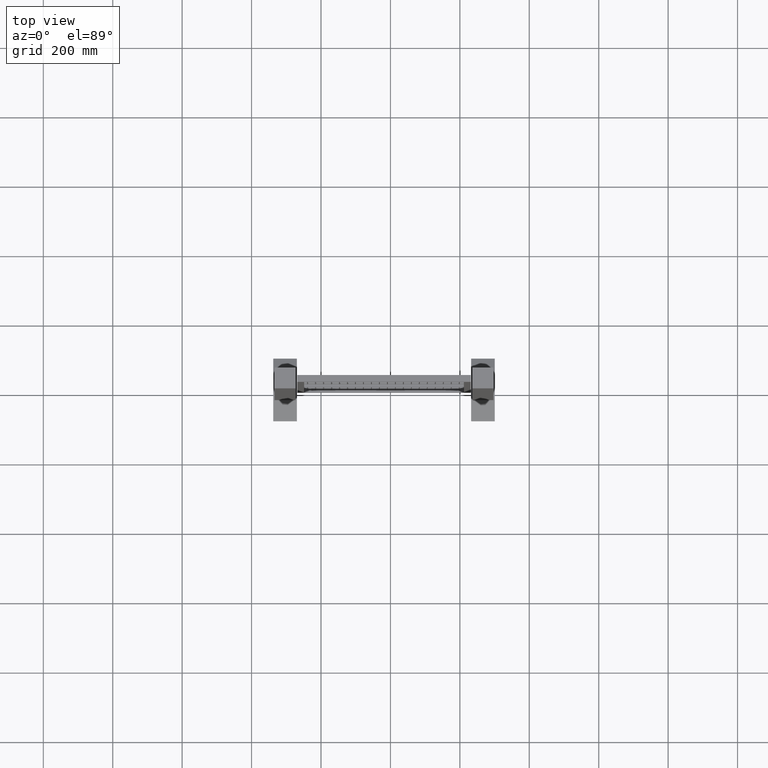
[diagram: clean part render]
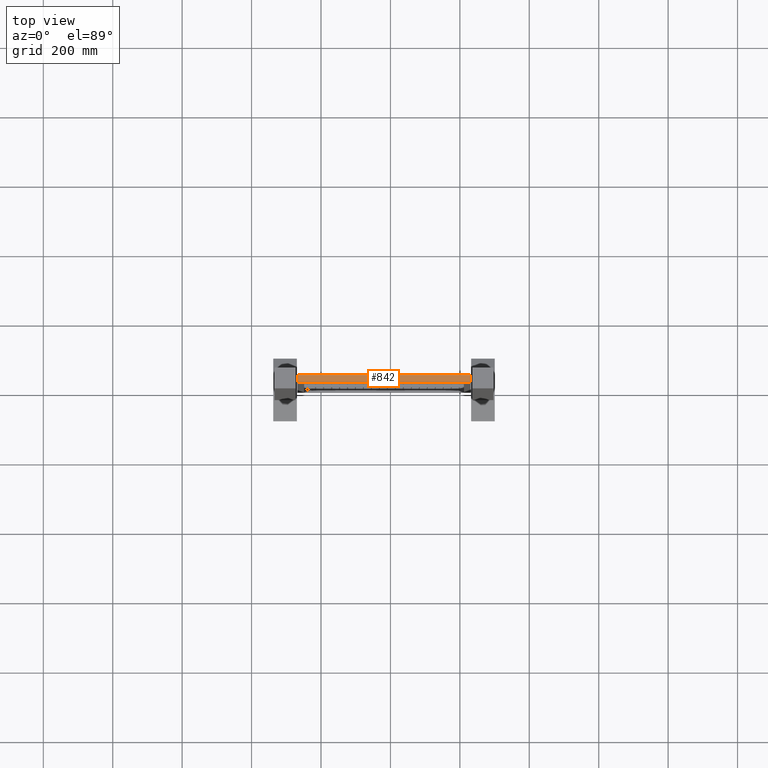
[diagram: same view with one face highlighted and labeled with its STEP entity id]
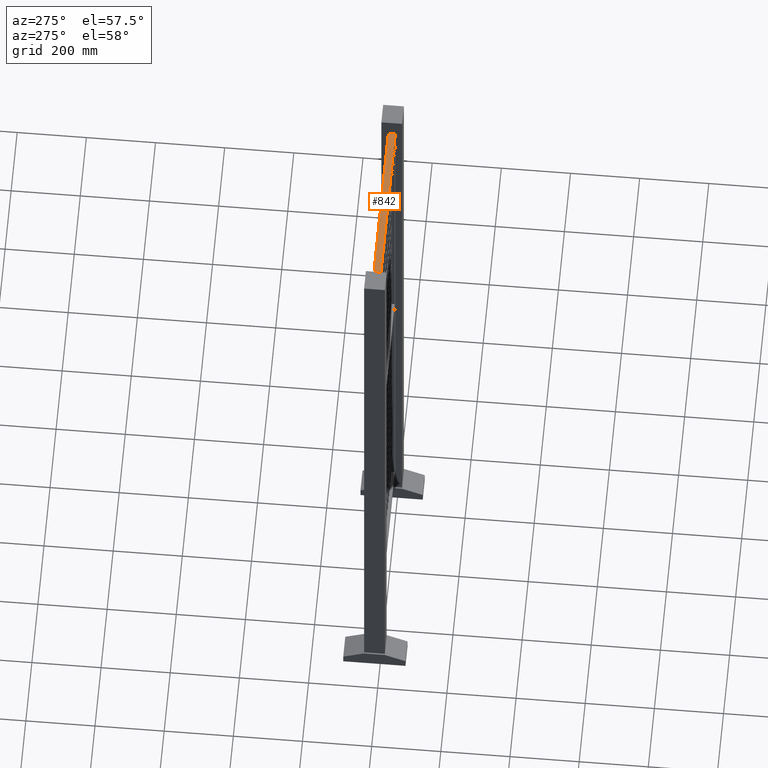
[diagram: same view with one face highlighted and labeled with its STEP entity id]
A machine part, top view. The second image highlights one B-rep face of the part: STEP entity #842.
A second angle (auxiliary view) of the same face is appended — the face is thin or edge-on in the first view.
In plain terms, the highlighted planar face has unit normal (0, 0, -1).
Its self-contained STEP definition (entity closure, byte-faithful):
#79=LINE('',#3009,#173);
#82=LINE('',#3015,#176);
#83=LINE('',#3017,#177);
#84=LINE('',#3019,#178);
#173=VECTOR('',#2435,1.);
#176=VECTOR('',#2440,1.);
#177=VECTOR('',#2441,1.);
#178=VECTOR('',#2442,1.);
#618=PLANE('',#2132);
#726=FACE_OUTER_BOUND('',#1148,.T.);
#842=ADVANCED_FACE('',(#726),#618,.F.);
#1148=EDGE_LOOP('',(#1375,#1376,#1377,#1378));
#1375=ORIENTED_EDGE('',*,*,#1865,.T.);
#1376=ORIENTED_EDGE('',*,*,#1866,.F.);
#1377=ORIENTED_EDGE('',*,*,#1867,.F.);
#1378=ORIENTED_EDGE('',*,*,#1862,.T.);
#1712=VERTEX_POINT('',#3008);
#1713=VERTEX_POINT('',#3010);
#1715=VERTEX_POINT('',#3016);
#1716=VERTEX_POINT('',#3018);
#1862=EDGE_CURVE('',#1713,#1712,#79,.T.);
#1865=EDGE_CURVE('',#1712,#1715,#82,.T.);
#1866=EDGE_CURVE('',#1716,#1715,#83,.T.);
#1867=EDGE_CURVE('',#1713,#1716,#84,.T.);
#2132=AXIS2_PLACEMENT_3D('',#3020,#2443,#2444);
#2435=DIRECTION('',(0.,1.,0.));
#2440=DIRECTION('',(-1.,0.,0.));
#2441=DIRECTION('',(0.,1.,0.));
#2442=DIRECTION('',(-1.,0.,0.));
#2443=DIRECTION('',(0.,0.,-1.));
#2444=DIRECTION('',(-1.,0.,0.));
#3008=CARTESIAN_POINT('',(250.,10.,900.));
#3009=CARTESIAN_POINT('',(250.,-10.,900.));
#3010=CARTESIAN_POINT('',(250.,-10.,900.));
#3015=CARTESIAN_POINT('',(250.,10.,900.));
#3016=CARTESIAN_POINT('',(-250.,10.,900.));
#3017=CARTESIAN_POINT('',(-250.,-10.,900.));
#3018=CARTESIAN_POINT('',(-250.,-10.,900.));
#3019=CARTESIAN_POINT('',(250.,-10.,900.));
#3020=CARTESIAN_POINT('',(250.,-10.,900.));